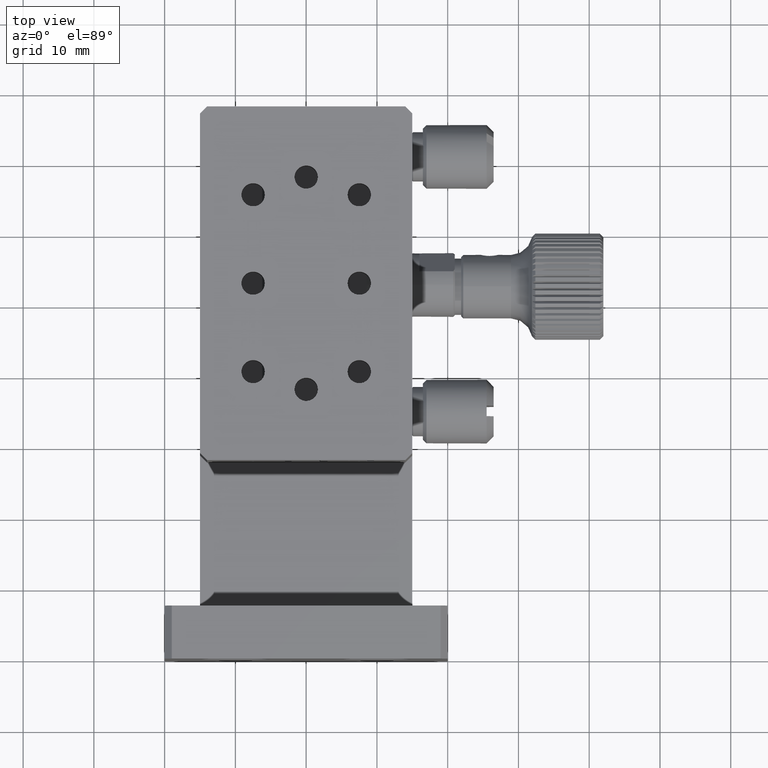
[diagram: clean part render]
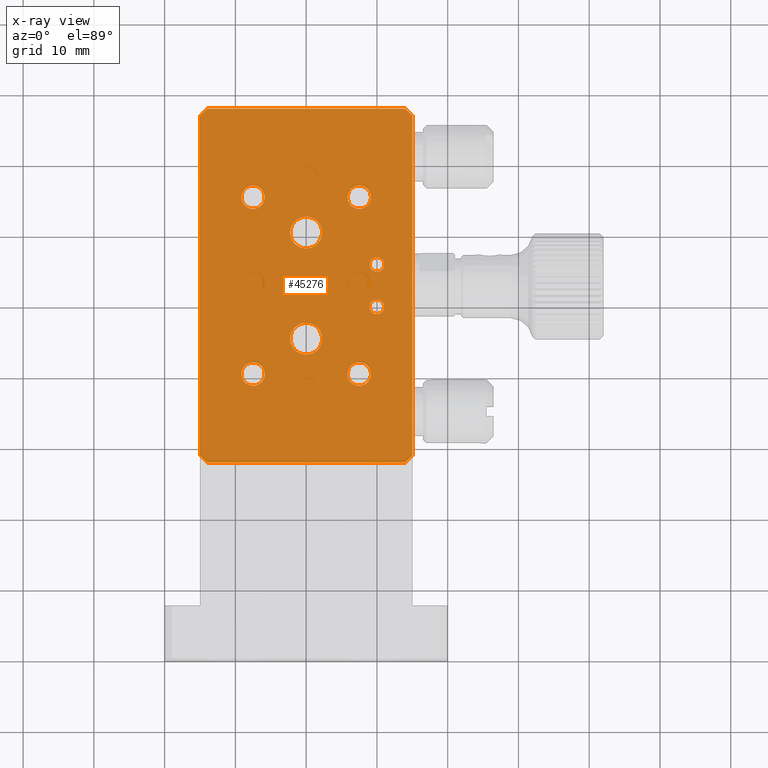
[diagram: x-ray — body ghosted, one internal face saturated and labeled with its STEP entity id]
A machine part, top view, then the same camera in x-ray: the body is ghosted and one INTERNAL B-rep face — a face not visible from any outside direction — is saturated and labeled: STEP entity #45276.
In plain terms, the highlighted planar face has unit normal (0, -0, -1).
Its self-contained STEP definition (entity closure, byte-faithful):
#430 = CARTESIAN_POINT ( 'NONE',  ( -9.149999999998190248, 65.50000000000110845, -12.50000000000062705 ) ) ;
#470 = FACE_BOUND ( 'NONE', #84387, .T. ) ;
#1045 = FACE_BOUND ( 'NONE', #82231, .T. ) ;
#1859 = CIRCLE ( 'NONE', #43884, 1.024999999999998135 ) ;
#1888 = ORIENTED_EDGE ( 'NONE', *, *, #76962, .T. ) ;
#2166 = LINE ( 'NONE', #90724, #11020 ) ;
#3751 = VECTOR ( 'NONE', #112520, 1000.000000000000114 ) ;
#4122 = ORIENTED_EDGE ( 'NONE', *, *, #59251, .F. ) ;
#5300 = AXIS2_PLACEMENT_3D ( 'NONE', #69561, #24099, #107767 ) ;
#7069 = EDGE_LOOP ( 'NONE', ( #15399 ) ) ;
#7939 = EDGE_CURVE ( 'NONE', #83073, #83073, #98621, .T. ) ;
#7953 = VECTOR ( 'NONE', #60478, 1000.000000000000000 ) ;
#8307 = DIRECTION ( 'NONE',  ( -1.000000000000000000, 0.000000000000000000, -6.600411274448351687E-14 ) ) ;
#8512 = CARTESIAN_POINT ( 'NONE',  ( 1.771162644613735502E-12, 60.50000000000105160, -12.50000000000001776 ) ) ;
#9096 = DIRECTION ( 'NONE',  ( -6.642668169983607012E-14, 1.716581289860660386E-16, 1.000000000000000000 ) ) ;
#10190 = LINE ( 'NONE', #17407, #60923 ) ;
#10362 = AXIS2_PLACEMENT_3D ( 'NONE', #8512, #9096, #27616 ) ;
#10926 = DIRECTION ( 'NONE',  ( 1.000000000000000000, 0.000000000000000000, 6.630498619289123729E-14 ) ) ;
#11020 = VECTOR ( 'NONE', #82898, 1000.000000000000000 ) ;
#12335 = CARTESIAN_POINT ( 'NONE',  ( 2.250000000001674216, 45.50000000000105160, -12.49999999999986500 ) ) ;
#12699 = CARTESIAN_POINT ( 'NONE',  ( -7.499999999998193445, 65.50000000000110845, -12.50000000000051692 ) ) ;
#13079 = VERTEX_POINT ( 'NONE', #32211 ) ;
#13693 = EDGE_CURVE ( 'NONE', #89826, #74075, #2166, .T. ) ;
#15221 = VECTOR ( 'NONE', #32581, 1000.000000000000000 ) ;
#15399 = ORIENTED_EDGE ( 'NONE', *, *, #7939, .T. ) ;
#17407 = CARTESIAN_POINT ( 'NONE',  ( 15.00000000000188471, 77.00000000000095213, -12.49999999999902833 ) ) ;
#18421 = FACE_OUTER_BOUND ( 'NONE', #117034, .T. ) ;
#19442 = AXIS2_PLACEMENT_3D ( 'NONE', #12699, #91242, #66535 ) ;
#20755 = DIRECTION ( 'NONE',  ( 6.642668169983607012E-14, -1.716581289860660386E-16, -1.000000000000000000 ) ) ;
#20867 = CARTESIAN_POINT ( 'NONE',  ( 8.975000000001751133, 56.00000000000099476, -12.49999999999942091 ) ) ;
#22455 = DIRECTION ( 'NONE',  ( -1.000000000000000000, 0.000000000000000000, -6.623489635547814299E-14 ) ) ;
#24099 = DIRECTION ( 'NONE',  ( -6.642668169983607012E-14, 1.716581289860660386E-16, 1.000000000000000000 ) ) ;
#24592 = VECTOR ( 'NONE', #89449, 1000.000000000000000 ) ;
#26750 = EDGE_CURVE ( 'NONE', #13079, #13079, #38959, .T. ) ;
#27616 = DIRECTION ( 'NONE',  ( 1.000000000000000000, 0.000000000000000000, 6.630498619289123729E-14 ) ) ;
#27973 = FACE_BOUND ( 'NONE', #49375, .T. ) ;
#28081 = EDGE_CURVE ( 'NONE', #32804, #32804, #86678, .T. ) ;
#28885 = EDGE_CURVE ( 'NONE', #78252, #78252, #100144, .T. ) ;
#30193 = CARTESIAN_POINT ( 'NONE',  ( 15.00000000000188471, 78.00000000000115108, -12.49999999999902656 ) ) ;
#31518 = DIRECTION ( 'NONE',  ( -1.000000000000000000, 0.000000000000000000, -6.642668169983607012E-14 ) ) ;
#31614 = CARTESIAN_POINT ( 'NONE',  ( 5.850000000001808864, 65.50000000000099476, -12.49999999999963052 ) ) ;
#31703 = ORIENTED_EDGE ( 'NONE', *, *, #102541, .T. ) ;
#31812 = CARTESIAN_POINT ( 'NONE',  ( 14.00000000000175859, 28.00000000000115818, -12.49999999999901235 ) ) ;
#32013 = CARTESIAN_POINT ( 'NONE',  ( 7.500000000001641354, 40.50000000000100897, -12.49999999999951683 ) ) ;
#32211 = CARTESIAN_POINT ( 'NONE',  ( 2.250000000001773248, 60.50000000000105160, -12.49999999999986855 ) ) ;
#32581 = DIRECTION ( 'NONE',  ( -1.140267989534681234E-29, -1.000000000000000000, 1.716581289860660386E-16 ) ) ;
#32804 = VERTEX_POINT ( 'NONE', #31614 ) ;
#33340 = AXIS2_PLACEMENT_3D ( 'NONE', #32013, #68495, #22455 ) ;
#33533 = EDGE_CURVE ( 'NONE', #98175, #50102, #113995, .T. ) ;
#34351 = ORIENTED_EDGE ( 'NONE', *, *, #61269, .T. ) ;
#36317 = ORIENTED_EDGE ( 'NONE', *, *, #33533, .T. ) ;
#36431 = DIRECTION ( 'NONE',  ( -6.642668169983607012E-14, 1.716581289860660386E-16, 1.000000000000000000 ) ) ;
#37527 = FACE_BOUND ( 'NONE', #80700, .T. ) ;
#38278 = CARTESIAN_POINT ( 'NONE',  ( -13.99999999999885425, 28.00000000000133582, -12.50000000000094502 ) ) ;
#38959 = CIRCLE ( 'NONE', #10362, 2.250000000000001776 ) ;
#39203 = CARTESIAN_POINT ( 'NONE',  ( 10.00000000000174794, 56.00000000000099476, -12.49999999999935341 ) ) ;
#41491 = VECTOR ( 'NONE', #31518, 1000.000000000000000 ) ;
#41763 = CARTESIAN_POINT ( 'NONE',  ( 5.850000000001642775, 40.50000000000100897, -12.49999999999962519 ) ) ;
#41801 = CARTESIAN_POINT ( 'NONE',  ( -13.99999999999855760, 78.00000000000090949, -12.50000000000095390 ) ) ;
#42139 = EDGE_LOOP ( 'NONE', ( #47028 ) ) ;
#43618 = VECTOR ( 'NONE', #88599, 1000.000000000000114 ) ;
#43884 = AXIS2_PLACEMENT_3D ( 'NONE', #62706, #89054, #8307 ) ;
#45056 = CARTESIAN_POINT ( 'NONE',  ( 1.672075239665939675E-12, 45.50000000000105160, -12.50000000000001421 ) ) ;
#45276 = ADVANCED_FACE ( 'NONE', ( #18421, #54891, #91374, #470, #1045, #82965, #37527, #27973, #64448 ), #112199, .T. ) ;
#47028 = ORIENTED_EDGE ( 'NONE', *, *, #26750, .T. ) ;
#48219 = CARTESIAN_POINT ( 'NONE',  ( 14.00000000000155964, 28.00000000000096279, -12.49999999999951328 ) ) ;
#49375 = EDGE_LOOP ( 'NONE', ( #86767 ) ) ;
#49585 = EDGE_CURVE ( 'NONE', #105790, #98175, #66511, .T. ) ;
#50102 = VERTEX_POINT ( 'NONE', #38278 ) ;
#50327 = CARTESIAN_POINT ( 'NONE',  ( -13.99999999999823252, 28.00000000000094857, -12.50000000000094325 ) ) ;
#50869 = AXIS2_PLACEMENT_3D ( 'NONE', #94896, #20755, #103248 ) ;
#51102 = EDGE_CURVE ( 'NONE', #98533, #98533, #1859, .T. ) ;
#51223 = CIRCLE ( 'NONE', #62660, 2.250000000000001776 ) ;
#52195 = EDGE_LOOP ( 'NONE', ( #107776 ) ) ;
#54796 = ORIENTED_EDGE ( 'NONE', *, *, #84078, .T. ) ;
#54891 = FACE_BOUND ( 'NONE', #42139, .T. ) ;
#56017 = VERTEX_POINT ( 'NONE', #65573 ) ;
#56357 = EDGE_LOOP ( 'NONE', ( #110697 ) ) ;
#57106 = LINE ( 'NONE', #30193, #15221 ) ;
#59251 = EDGE_CURVE ( 'NONE', #89826, #96619, #104726, .T. ) ;
#59403 = VERTEX_POINT ( 'NONE', #90367 ) ;
#60478 = DIRECTION ( 'NONE',  ( -0.7071067811865571207, -0.7071067811865379138, 0.000000000000000000 ) ) ;
#60923 = VECTOR ( 'NONE', #82542, 999.9999999999998863 ) ;
#61269 = EDGE_CURVE ( 'NONE', #82351, #82351, #101538, .T. ) ;
#62660 = AXIS2_PLACEMENT_3D ( 'NONE', #45056, #81533, #10926 ) ;
#62706 = CARTESIAN_POINT ( 'NONE',  ( 10.00000000000170708, 50.00000000000098765, -12.49999999999935163 ) ) ;
#63098 = LINE ( 'NONE', #70325, #24592 ) ;
#63416 = EDGE_CURVE ( 'NONE', #77210, #74075, #10190, .T. ) ;
#64448 = FACE_BOUND ( 'NONE', #7069, .T. ) ;
#65573 = CARTESIAN_POINT ( 'NONE',  ( -9.149999999998357225, 40.50000000000110134, -12.50000000000062172 ) ) ;
#66511 = LINE ( 'NONE', #31812, #3751 ) ;
#66535 = DIRECTION ( 'NONE',  ( -1.000000000000000000, 0.000000000000000000, -6.623489635547816823E-14 ) ) ;
#68495 = DIRECTION ( 'NONE',  ( -6.642668169983607012E-14, 1.716581289860660386E-16, 1.000000000000000000 ) ) ;
#69097 = DIRECTION ( 'NONE',  ( -6.642668169983607012E-14, 1.716581289860660386E-16, 1.000000000000000000 ) ) ;
#69561 = CARTESIAN_POINT ( 'NONE',  ( -7.499999999998357758, 40.50000000000110134, -12.50000000000051159 ) ) ;
#70325 = CARTESIAN_POINT ( 'NONE',  ( -14.99999999999843325, 78.00000000000115108, -12.50000000000101963 ) ) ;
#70585 = CARTESIAN_POINT ( 'NONE',  ( 14.00000000000182609, 78.00000000000100897, -12.49999999999952571 ) ) ;
#71071 = CARTESIAN_POINT ( 'NONE',  ( 8.975000000001708500, 50.00000000000098765, -12.49999999999941913 ) ) ;
#74075 = VERTEX_POINT ( 'NONE', #70585 ) ;
#76962 = EDGE_CURVE ( 'NONE', #56017, #56017, #79747, .T. ) ;
#77210 = VERTEX_POINT ( 'NONE', #79112 ) ;
#77260 = CARTESIAN_POINT ( 'NONE',  ( -14.99999999999858069, 77.00000000000068212, -12.50000000000095390 ) ) ;
#78252 = VERTEX_POINT ( 'NONE', #41763 ) ;
#79112 = CARTESIAN_POINT ( 'NONE',  ( 15.00000000000165201, 77.00000000000117950, -12.49999999999902478 ) ) ;
#79693 = EDGE_CURVE ( 'NONE', #84123, #84123, #51223, .T. ) ;
#79747 = CIRCLE ( 'NONE', #5300, 1.649999999999999467 ) ;
#80115 = DIRECTION ( 'NONE',  ( -1.000000000000000000, 0.000000000000000000, -6.623489635547814299E-14 ) ) ;
#80700 = EDGE_LOOP ( 'NONE', ( #1888 ) ) ;
#81533 = DIRECTION ( 'NONE',  ( -6.642668169983607012E-14, 1.716581289860660386E-16, 1.000000000000000000 ) ) ;
#82231 = EDGE_LOOP ( 'NONE', ( #34351 ) ) ;
#82351 = VERTEX_POINT ( 'NONE', #430 ) ;
#82447 = CARTESIAN_POINT ( 'NONE',  ( 7.500000000001807443, 65.50000000000099476, -12.49999999999952216 ) ) ;
#82542 = DIRECTION ( 'NONE',  ( -0.7071067811865479058, 0.7071067811865472397, 0.000000000000000000 ) ) ;
#82898 = DIRECTION ( 'NONE',  ( 1.000000000000000000, -0.000000000000000000, 6.642668169983607012E-14 ) ) ;
#82965 = FACE_BOUND ( 'NONE', #52195, .T. ) ;
#83073 = VERTEX_POINT ( 'NONE', #20867 ) ;
#84078 = EDGE_CURVE ( 'NONE', #59403, #96619, #63098, .T. ) ;
#84123 = VERTEX_POINT ( 'NONE', #12335 ) ;
#84387 = EDGE_LOOP ( 'NONE', ( #91082 ) ) ;
#86369 = ORIENTED_EDGE ( 'NONE', *, *, #95130, .T. ) ;
#86678 = CIRCLE ( 'NONE', #101909, 1.649999999999998579 ) ;
#86767 = ORIENTED_EDGE ( 'NONE', *, *, #51102, .T. ) ;
#88599 = DIRECTION ( 'NONE',  ( -0.7071067811865404673, 0.7071067811865546782, 0.000000000000000000 ) ) ;
#89054 = DIRECTION ( 'NONE',  ( -6.642668169983607012E-14, 1.716581289860660386E-16, 1.000000000000000000 ) ) ;
#89449 = DIRECTION ( 'NONE',  ( 1.140267989534681234E-29, 1.000000000000000000, -1.716581289860660386E-16 ) ) ;
#89826 = VERTEX_POINT ( 'NONE', #41801 ) ;
#90367 = CARTESIAN_POINT ( 'NONE',  ( -14.99999999999843503, 29.00000000000116884, -12.50000000000097877 ) ) ;
#90724 = CARTESIAN_POINT ( 'NONE',  ( -14.99999999999810996, 78.00000000000115108, -12.50000000000101963 ) ) ;
#91043 = CARTESIAN_POINT ( 'NONE',  ( 15.00000000000141576, 29.00000000000081002, -12.49999999999901412 ) ) ;
#91082 = ORIENTED_EDGE ( 'NONE', *, *, #28081, .T. ) ;
#91242 = DIRECTION ( 'NONE',  ( -6.642668169983607012E-14, 1.716581289860660386E-16, 1.000000000000000000 ) ) ;
#91374 = FACE_BOUND ( 'NONE', #56357, .T. ) ;
#92682 = ORIENTED_EDGE ( 'NONE', *, *, #49585, .T. ) ;
#94896 = CARTESIAN_POINT ( 'NONE',  ( -14.99999999999810996, 78.00000000000115108, -12.50000000000101963 ) ) ;
#95130 = EDGE_CURVE ( 'NONE', #77210, #105790, #57106, .T. ) ;
#95707 = ORIENTED_EDGE ( 'NONE', *, *, #13693, .T. ) ;
#96619 = VERTEX_POINT ( 'NONE', #100604 ) ;
#98175 = VERTEX_POINT ( 'NONE', #48219 ) ;
#98533 = VERTEX_POINT ( 'NONE', #71071 ) ;
#98621 = CIRCLE ( 'NONE', #113857, 1.024999999999998135 ) ;
#100144 = CIRCLE ( 'NONE', #33340, 1.649999999999998579 ) ;
#100604 = CARTESIAN_POINT ( 'NONE',  ( -14.99999999999819522, 77.00000000000106581, -12.50000000000098588 ) ) ;
#101538 = CIRCLE ( 'NONE', #19442, 1.649999999999997913 ) ;
#101909 = AXIS2_PLACEMENT_3D ( 'NONE', #82447, #36431, #80115 ) ;
#102541 = EDGE_CURVE ( 'NONE', #50102, #59403, #106488, .T. ) ;
#103248 = DIRECTION ( 'NONE',  ( -1.000000000000000000, 0.000000000000000000, -6.642668169983607012E-14 ) ) ;
#103749 = DIRECTION ( 'NONE',  ( -1.000000000000000000, 0.000000000000000000, -6.600411274448351687E-14 ) ) ;
#104726 = LINE ( 'NONE', #77260, #7953 ) ;
#105790 = VERTEX_POINT ( 'NONE', #91043 ) ;
#106488 = LINE ( 'NONE', #50327, #43618 ) ;
#107767 = DIRECTION ( 'NONE',  ( -1.000000000000000000, 0.000000000000000000, -6.623489635547810512E-14 ) ) ;
#107776 = ORIENTED_EDGE ( 'NONE', *, *, #28885, .T. ) ;
#110697 = ORIENTED_EDGE ( 'NONE', *, *, #79693, .T. ) ;
#112199 = PLANE ( 'NONE',  #50869 ) ;
#112520 = DIRECTION ( 'NONE',  ( -0.7071067811865497932, -0.7071067811865453523, 0.000000000000000000 ) ) ;
#113410 = CARTESIAN_POINT ( 'NONE',  ( -14.99999999999810996, 28.00000000000096989, -12.50000000000101075 ) ) ;
#113857 = AXIS2_PLACEMENT_3D ( 'NONE', #39203, #69097, #103749 ) ;
#113995 = LINE ( 'NONE', #113410, #41491 ) ;
#114197 = ORIENTED_EDGE ( 'NONE', *, *, #63416, .F. ) ;
#117034 = EDGE_LOOP ( 'NONE', ( #36317, #31703, #54796, #4122, #95707, #114197, #86369, #92682 ) ) ;